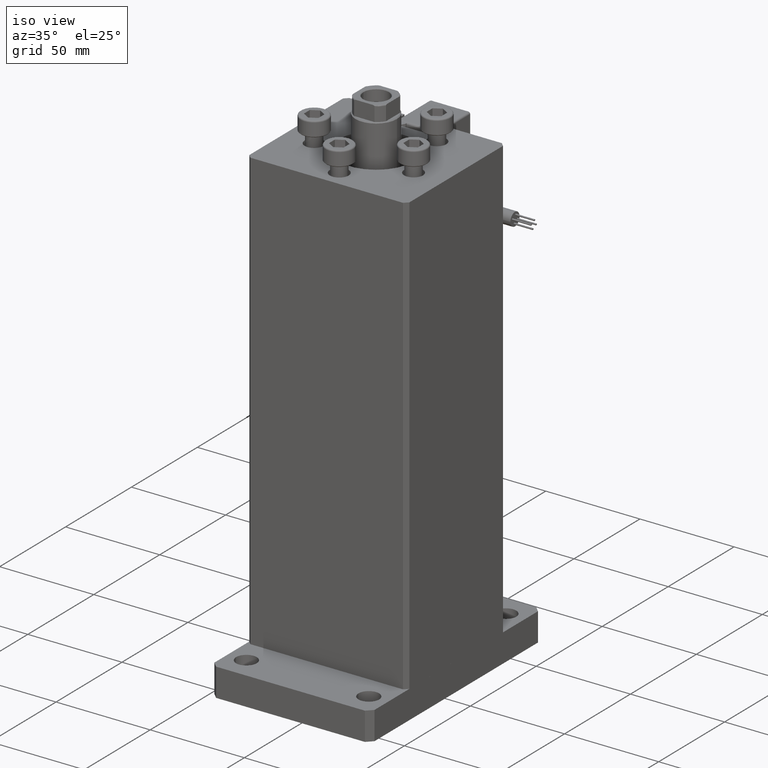
[diagram: clean part render]
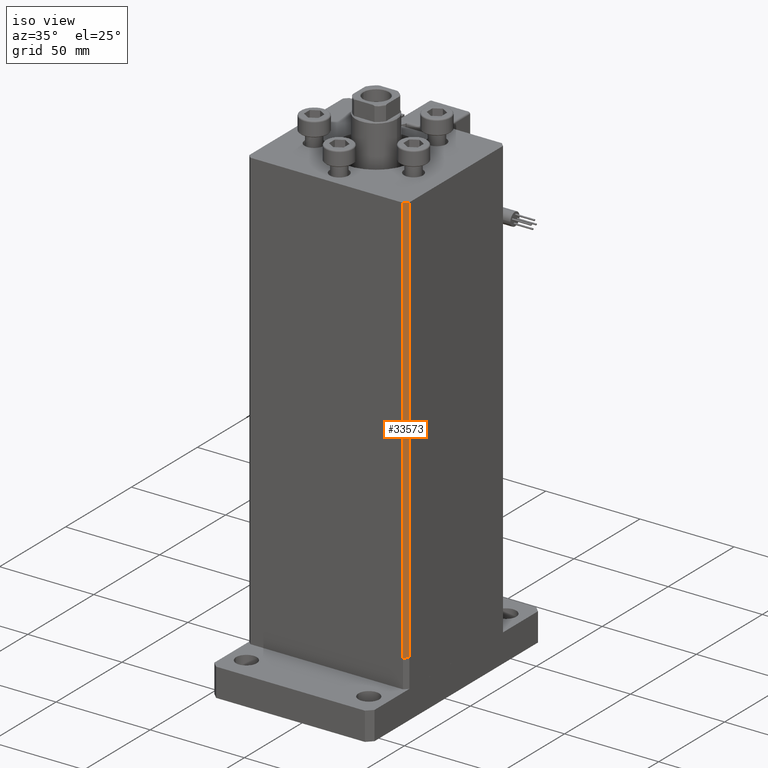
[diagram: same view with one face highlighted and labeled with its STEP entity id]
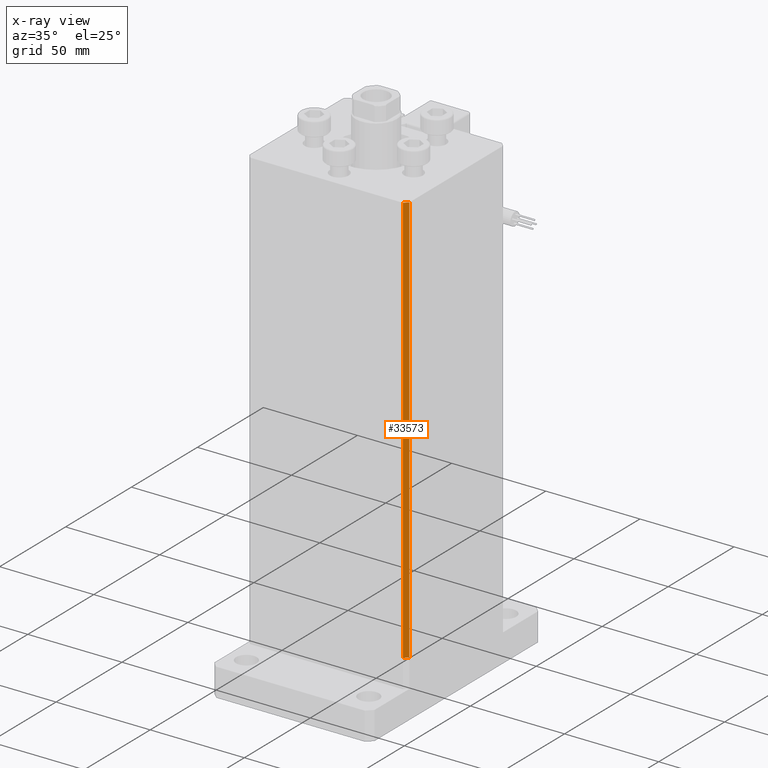
[diagram: x-ray of the same camera — body ghosted, the highlighted face saturated]
A machine part, iso view. The second image highlights one B-rep face of the part: STEP entity #33573.
The next image is the same camera in x-ray: the body ghosted, the highlighted face saturated — about 0% of this face is hidden behind the body in this view.
In plain terms, the highlighted planar face has unit normal (0.7071, -0.7071, 0).
Its self-contained STEP definition (entity closure, byte-faithful):
#100 = VECTOR ( 'NONE', #34010, 1000.000000000000000 ) ;
#2401 = EDGE_CURVE ( 'NONE', #3760, #55306, #41993, .T. ) ;
#3752 = CARTESIAN_POINT ( 'NONE',  ( 40.49999999999998579, -37.50000000000000711, 218.5000000000000000 ) ) ;
#3760 = VERTEX_POINT ( 'NONE', #36469 ) ;
#4069 = AXIS2_PLACEMENT_3D ( 'NONE', #51595, #18542, #40756 ) ;
#6491 = ORIENTED_EDGE ( 'NONE', *, *, #42592, .T. ) ;
#7062 = EDGE_CURVE ( 'NONE', #3760, #50524, #12202, .T. ) ;
#12202 = LINE ( 'NONE', #33563, #50285 ) ;
#12601 = FACE_OUTER_BOUND ( 'NONE', #26494, .T. ) ;
#16197 = DIRECTION ( 'NONE',  ( -0.7071067811865474617, -0.7071067811865474617, 0.000000000000000000 ) ) ;
#17210 = CARTESIAN_POINT ( 'NONE',  ( 42.49999999999998579, -35.50000000000000711, 0.000000000000000000 ) ) ;
#17940 = EDGE_CURVE ( 'NONE', #55306, #32445, #25756, .T. ) ;
#18542 = DIRECTION ( 'NONE',  ( 0.7071067811865475727, -0.7071067811865475727, 0.000000000000000000 ) ) ;
#24919 = CARTESIAN_POINT ( 'NONE',  ( 40.49999999999998579, -37.50000000000000711, 0.000000000000000000 ) ) ;
#25204 = DIRECTION ( 'NONE',  ( -0.7071067811865474617, -0.7071067811865474617, 0.000000000000000000 ) ) ;
#25756 = LINE ( 'NONE', #17210, #55965 ) ;
#26068 = VECTOR ( 'NONE', #28574, 1000.000000000000000 ) ;
#26494 = EDGE_LOOP ( 'NONE', ( #44562, #40861, #46124, #6491 ) ) ;
#28574 = DIRECTION ( 'NONE',  ( -0.000000000000000000, -0.000000000000000000, -1.000000000000000000 ) ) ;
#28863 = LINE ( 'NONE', #3752, #26068 ) ;
#32445 = VERTEX_POINT ( 'NONE', #24919 ) ;
#33563 = CARTESIAN_POINT ( 'NONE',  ( 42.49999999999998579, -35.50000000000000711, 218.5000000000000000 ) ) ;
#33573 = ADVANCED_FACE ( 'NONE', ( #12601 ), #34249, .T. ) ;
#34010 = DIRECTION ( 'NONE',  ( -0.000000000000000000, -0.000000000000000000, -1.000000000000000000 ) ) ;
#34249 = PLANE ( 'NONE',  #4069 ) ;
#36469 = CARTESIAN_POINT ( 'NONE',  ( 42.49999999999998579, -35.50000000000000711, 218.5000000000000000 ) ) ;
#40756 = DIRECTION ( 'NONE',  ( 0.7071067811865474617, 0.7071067811865474617, 0.000000000000000000 ) ) ;
#40861 = ORIENTED_EDGE ( 'NONE', *, *, #2401, .F. ) ;
#41993 = LINE ( 'NONE', #47101, #100 ) ;
#42592 = EDGE_CURVE ( 'NONE', #50524, #32445, #28863, .T. ) ;
#44562 = ORIENTED_EDGE ( 'NONE', *, *, #17940, .F. ) ;
#45303 = CARTESIAN_POINT ( 'NONE',  ( 40.49999999999998579, -37.50000000000000711, 218.5000000000000000 ) ) ;
#46124 = ORIENTED_EDGE ( 'NONE', *, *, #7062, .T. ) ;
#47101 = CARTESIAN_POINT ( 'NONE',  ( 42.49999999999998579, -35.50000000000000711, 218.5000000000000000 ) ) ;
#49546 = CARTESIAN_POINT ( 'NONE',  ( 42.49999999999998579, -35.50000000000000711, 0.000000000000000000 ) ) ;
#50285 = VECTOR ( 'NONE', #16197, 1000.000000000000114 ) ;
#50524 = VERTEX_POINT ( 'NONE', #45303 ) ;
#51595 = CARTESIAN_POINT ( 'NONE',  ( 42.49999999999998579, -35.50000000000000711, 218.5000000000000000 ) ) ;
#55306 = VERTEX_POINT ( 'NONE', #49546 ) ;
#55965 = VECTOR ( 'NONE', #25204, 1000.000000000000114 ) ;